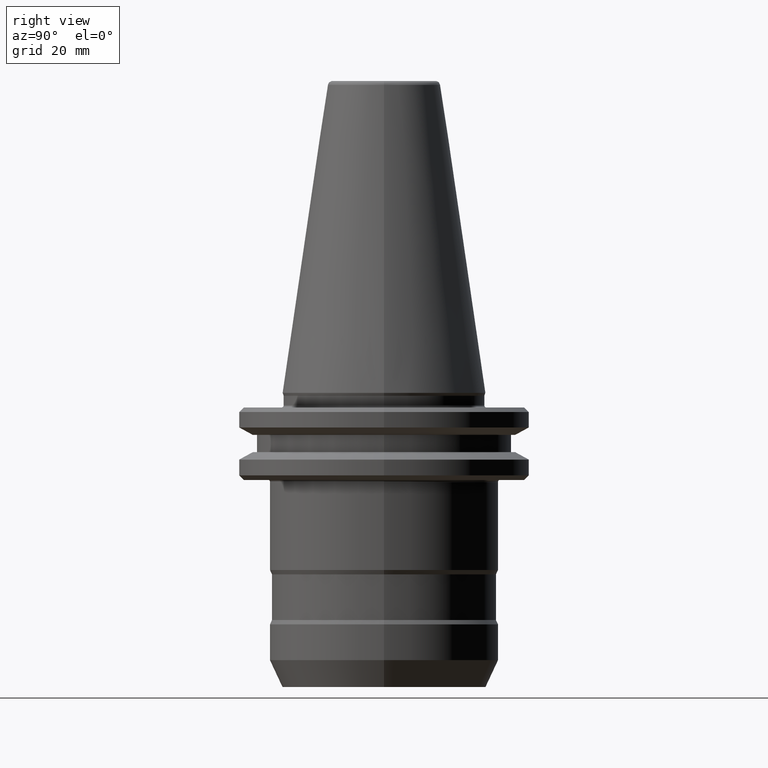
[diagram: clean part render]
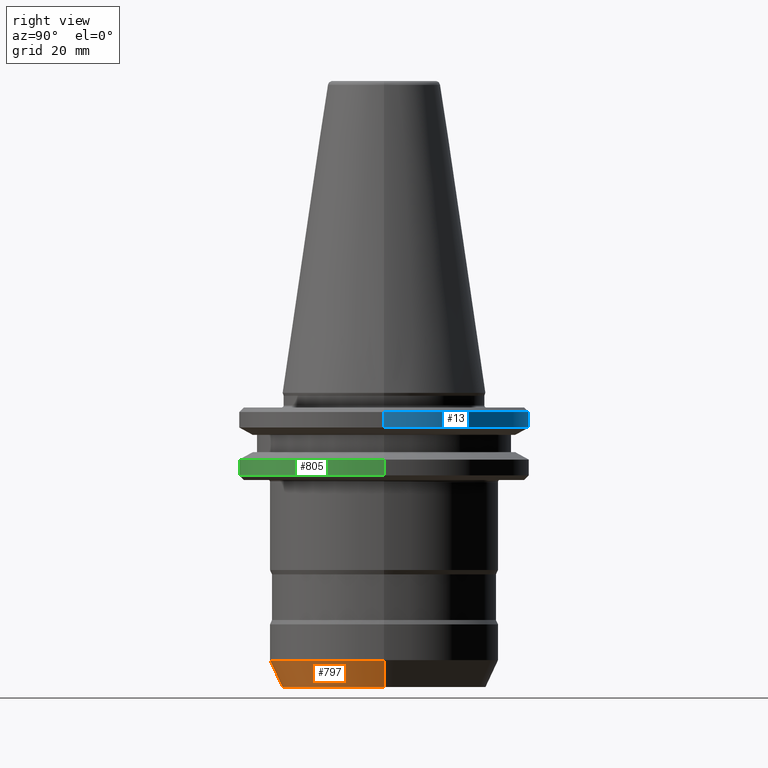
[diagram: same view with three faces highlighted in distinct colors, each labeled with its STEP entity id]
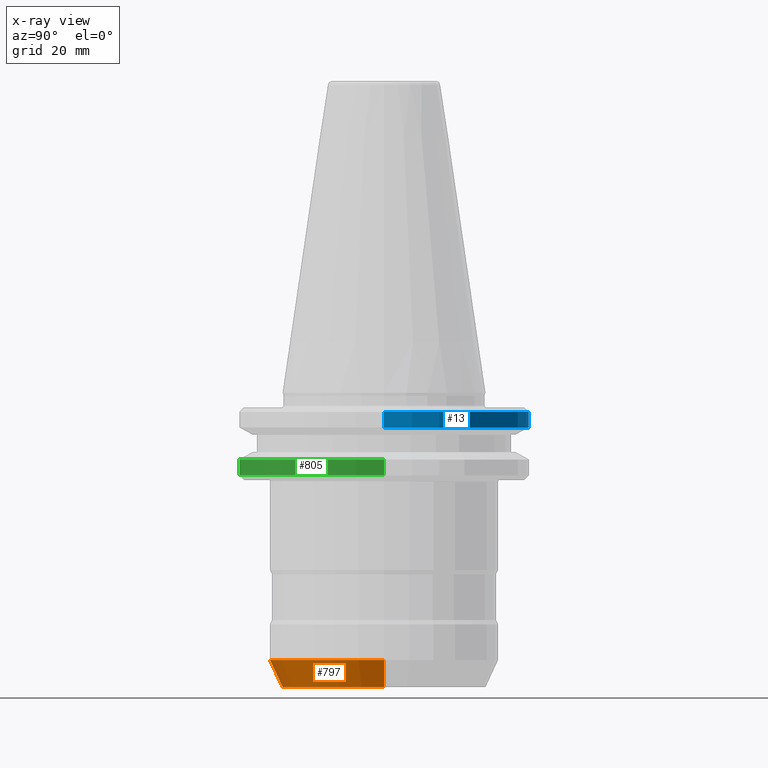
[diagram: x-ray of the same camera — body ghosted, the three highlighted faces saturated]
A machine part, right view with three faces highlighted in distinct colors.
The next image is the same camera in x-ray (body ghosted, the three faces saturated) — at least one of them is partly hidden behind the body in this view.
Their STEP definitions:

[orange] entity #797 — the highlighted conical surface has half-angle 25 deg.
#33 = CARTESIAN_POINT ( 'NONE',  ( 22.25000000000130700, 0.0000000000000000000, -64.49999999999090500 ) ) ;
#49 = VERTEX_POINT ( 'NONE', #659 ) ;
#52 = EDGE_CURVE ( 'NONE', #49, #716, #462, .T. ) ;
#77 = DIRECTION ( 'NONE',  ( -1.000000000000000000, 0.0000000000000000000, 0.0000000000000000000 ) ) ;
#162 = AXIS2_PLACEMENT_3D ( 'NONE', #1230, #653, #77 ) ;
#177 = CARTESIAN_POINT ( 'NONE',  ( 0.0000000000000000000, 0.0000000000000000000, -58.60260596859223600 ) ) ;
#234 = DIRECTION ( 'NONE',  ( -0.4226182617406890600, 5.175581015019531800E-017, 0.9063077870366548200 ) ) ;
#251 = CARTESIAN_POINT ( 'NONE',  ( 22.25000000000130700, 0.0000000000000000000, -64.49999999999090500 ) ) ;
#257 = EDGE_CURVE ( 'NONE', #683, #49, #1002, .T. ) ;
#268 = ORIENTED_EDGE ( 'NONE', *, *, #503, .F. ) ;
#459 = ORIENTED_EDGE ( 'NONE', *, *, #257, .T. ) ;
#462 = CIRCLE ( 'NONE', #979, 25.00000000000000000 ) ;
#476 = DIRECTION ( 'NONE',  ( 1.000000000000000000, 0.0000000000000000000, 0.0000000000000000000 ) ) ;
#478 = AXIS2_PLACEMENT_3D ( 'NONE', #679, #584, #476 ) ;
#503 = EDGE_CURVE ( 'NONE', #751, #716, #759, .T. ) ;
#546 = CARTESIAN_POINT ( 'NONE',  ( -22.25000000000130700, 2.893228062985701900E-015, -64.49999999999090500 ) ) ;
#575 = DIRECTION ( 'NONE',  ( 0.4226182617406890600, 0.0000000000000000000, 0.9063077870366548200 ) ) ;
#584 = DIRECTION ( 'NONE',  ( 0.0000000000000000000, 0.0000000000000000000, 1.000000000000000000 ) ) ;
#642 = CARTESIAN_POINT ( 'NONE',  ( -25.00000000000000000, 3.061616997868383000E-015, -58.60260596859223600 ) ) ;
#643 = ORIENTED_EDGE ( 'NONE', *, *, #52, .T. ) ;
#653 = DIRECTION ( 'NONE',  ( -0.0000000000000000000, -0.0000000000000000000, -1.000000000000000000 ) ) ;
#659 = CARTESIAN_POINT ( 'NONE',  ( 25.00000000000000000, 0.0000000000000000000, -58.60260596859223600 ) ) ;
#679 = CARTESIAN_POINT ( 'NONE',  ( 0.0000000000000000000, 0.0000000000000000000, -64.49999999999090500 ) ) ;
#683 = VERTEX_POINT ( 'NONE', #251 ) ;
#702 = CARTESIAN_POINT ( 'NONE',  ( -22.25000000000130700, 2.724839128103020700E-015, -64.49999999999090500 ) ) ;
#716 = VERTEX_POINT ( 'NONE', #642 ) ;
#727 = VECTOR ( 'NONE', #234, 1000.000000000000100 ) ;
#751 = VERTEX_POINT ( 'NONE', #546 ) ;
#759 = LINE ( 'NONE', #702, #727 ) ;
#764 = DIRECTION ( 'NONE',  ( -0.0000000000000000000, -0.0000000000000000000, -1.000000000000000000 ) ) ;
#768 = EDGE_CURVE ( 'NONE', #683, #751, #1033, .T. ) ;
#797 = ADVANCED_FACE ( 'NONE', ( #1005 ), #887, .T. ) ;
#887 = CONICAL_SURFACE ( 'NONE', #478, 22.25000000000130700, 0.4363323129985710000 ) ;
#979 = AXIS2_PLACEMENT_3D ( 'NONE', #177, #764, #1135 ) ;
#1002 = LINE ( 'NONE', #33, #1218 ) ;
#1005 = FACE_OUTER_BOUND ( 'NONE', #1081, .T. ) ;
#1033 = CIRCLE ( 'NONE', #162, 22.25000000000130700 ) ;
#1081 = EDGE_LOOP ( 'NONE', ( #268, #1105, #459, #643 ) ) ;
#1105 = ORIENTED_EDGE ( 'NONE', *, *, #768, .F. ) ;
#1135 = DIRECTION ( 'NONE',  ( -1.000000000000000000, 0.0000000000000000000, 0.0000000000000000000 ) ) ;
#1218 = VECTOR ( 'NONE', #575, 1000.000000000000100 ) ;
#1230 = CARTESIAN_POINT ( 'NONE',  ( 0.0000000000000000000, 0.0000000000000000000, -64.49999999999090500 ) ) ;

[blue] entity #13 — the highlighted cylindrical surface (partial cylindrical patch) has radius 31.75 mm, axis along (-0, -0, -1).
#6 = VERTEX_POINT ( 'NONE', #148 ) ;
#13 = ADVANCED_FACE ( 'NONE', ( #795 ), #1083, .T. ) ;
#67 = CARTESIAN_POINT ( 'NONE',  ( -31.74999999999998600, 0.0000000000000000000, -73.52490428627834300 ) ) ;
#88 = EDGE_CURVE ( 'NONE', #372, #6, #963, .T. ) ;
#106 = AXIS2_PLACEMENT_3D ( 'NONE', #1164, #902, #415 ) ;
#126 = EDGE_CURVE ( 'NONE', #913, #264, #906, .T. ) ;
#148 = CARTESIAN_POINT ( 'NONE',  ( 31.74999999999999300, 0.0000000000000000000, -7.578163357937247800 ) ) ;
#161 = EDGE_CURVE ( 'NONE', #913, #372, #571, .T. ) ;
#184 = VECTOR ( 'NONE', #1141, 1000.000000000000000 ) ;
#208 = ORIENTED_EDGE ( 'NONE', *, *, #88, .T. ) ;
#264 = VERTEX_POINT ( 'NONE', #524 ) ;
#319 = ORIENTED_EDGE ( 'NONE', *, *, #161, .T. ) ;
#342 = VECTOR ( 'NONE', #961, 1000.000000000000000 ) ;
#346 = DIRECTION ( 'NONE',  ( -0.0000000000000000000, -0.0000000000000000000, -1.000000000000000000 ) ) ;
#361 = CARTESIAN_POINT ( 'NONE',  ( 0.0000000000000000000, 0.0000000000000000000, -73.52490428627834300 ) ) ;
#372 = VERTEX_POINT ( 'NONE', #854 ) ;
#415 = DIRECTION ( 'NONE',  ( -1.000000000000000000, 0.0000000000000000000, 0.0000000000000000000 ) ) ;
#453 = DIRECTION ( 'NONE',  ( -1.000000000000000000, 0.0000000000000000000, 0.0000000000000000000 ) ) ;
#524 = CARTESIAN_POINT ( 'NONE',  ( -31.74999999999999300, 3.888253587292845700E-015, -7.578163357937247800 ) ) ;
#565 = CARTESIAN_POINT ( 'NONE',  ( 31.74999999999998600, 3.888253587292844900E-015, -73.52490428627834300 ) ) ;
#570 = EDGE_LOOP ( 'NONE', ( #319, #208, #595, #1203 ) ) ;
#571 = CIRCLE ( 'NONE', #106, 31.74999999999998600 ) ;
#577 = CIRCLE ( 'NONE', #821, 31.74999999999999300 ) ;
#595 = ORIENTED_EDGE ( 'NONE', *, *, #699, .F. ) ;
#618 = CARTESIAN_POINT ( 'NONE',  ( -31.74999999999998600, 0.0000000000000000000, -4.199999999993528000 ) ) ;
#646 = DIRECTION ( 'NONE',  ( -0.0000000000000000000, -0.0000000000000000000, -1.000000000000000000 ) ) ;
#699 = EDGE_CURVE ( 'NONE', #264, #6, #577, .T. ) ;
#795 = FACE_OUTER_BOUND ( 'NONE', #570, .T. ) ;
#821 = AXIS2_PLACEMENT_3D ( 'NONE', #938, #346, #1025 ) ;
#846 = AXIS2_PLACEMENT_3D ( 'NONE', #361, #646, #453 ) ;
#854 = CARTESIAN_POINT ( 'NONE',  ( 31.74999999999998600, 3.888253587292844900E-015, -4.199999999993528000 ) ) ;
#902 = DIRECTION ( 'NONE',  ( -0.0000000000000000000, -0.0000000000000000000, -1.000000000000000000 ) ) ;
#906 = LINE ( 'NONE', #67, #342 ) ;
#913 = VERTEX_POINT ( 'NONE', #618 ) ;
#938 = CARTESIAN_POINT ( 'NONE',  ( 0.0000000000000000000, 0.0000000000000000000, -7.578163357937247800 ) ) ;
#961 = DIRECTION ( 'NONE',  ( -0.0000000000000000000, -0.0000000000000000000, -1.000000000000000000 ) ) ;
#963 = LINE ( 'NONE', #565, #184 ) ;
#1025 = DIRECTION ( 'NONE',  ( -1.000000000000000000, 0.0000000000000000000, 0.0000000000000000000 ) ) ;
#1083 = CYLINDRICAL_SURFACE ( 'NONE', #846, 31.74999999999998600 ) ;
#1141 = DIRECTION ( 'NONE',  ( -0.0000000000000000000, -0.0000000000000000000, -1.000000000000000000 ) ) ;
#1164 = CARTESIAN_POINT ( 'NONE',  ( 0.0000000000000000000, 0.0000000000000000000, -4.199999999993528000 ) ) ;
#1203 = ORIENTED_EDGE ( 'NONE', *, *, #126, .F. ) ;

[green] entity #805 — the highlighted cylindrical surface (partial cylindrical patch) has radius 31.75 mm, axis along (-0, -0, -1).
#1 = CYLINDRICAL_SURFACE ( 'NONE', #681, 31.75000000000000000 ) ;
#20 = EDGE_CURVE ( 'NONE', #109, #66, #863, .T. ) ;
#60 = CARTESIAN_POINT ( 'NONE',  ( -31.74999999999999300, 0.0000000000000000000, -14.62183664205596400 ) ) ;
#66 = VERTEX_POINT ( 'NONE', #958 ) ;
#109 = VERTEX_POINT ( 'NONE', #277 ) ;
#118 = DIRECTION ( 'NONE',  ( -1.000000000000000000, 0.0000000000000000000, 0.0000000000000000000 ) ) ;
#180 = DIRECTION ( 'NONE',  ( -0.0000000000000000000, -0.0000000000000000000, -1.000000000000000000 ) ) ;
#209 = CARTESIAN_POINT ( 'NONE',  ( 0.0000000000000000000, 0.0000000000000000000, -18.10000000000011500 ) ) ;
#256 = EDGE_CURVE ( 'NONE', #109, #1089, #473, .T. ) ;
#277 = CARTESIAN_POINT ( 'NONE',  ( 31.74999999999999300, 3.888253587292845700E-015, -14.62183664205596400 ) ) ;
#297 = CARTESIAN_POINT ( 'NONE',  ( 0.0000000000000000000, 0.0000000000000000000, -73.52490428627834300 ) ) ;
#345 = CARTESIAN_POINT ( 'NONE',  ( -31.75000000000000000, 0.0000000000000000000, -73.52490428627834300 ) ) ;
#390 = DIRECTION ( 'NONE',  ( -0.0000000000000000000, -0.0000000000000000000, -1.000000000000000000 ) ) ;
#393 = DIRECTION ( 'NONE',  ( -1.000000000000000000, 0.0000000000000000000, 0.0000000000000000000 ) ) ;
#395 = CIRCLE ( 'NONE', #981, 31.75000000000000000 ) ;
#416 = LINE ( 'NONE', #345, #914 ) ;
#439 = CARTESIAN_POINT ( 'NONE',  ( -31.75000000000000000, 3.888253587292847300E-015, -18.10000000000011500 ) ) ;
#460 = EDGE_CURVE ( 'NONE', #66, #697, #395, .T. ) ;
#473 = CIRCLE ( 'NONE', #892, 31.74999999999999300 ) ;
#567 = VECTOR ( 'NONE', #180, 1000.000000000000000 ) ;
#681 = AXIS2_PLACEMENT_3D ( 'NONE', #297, #390, #884 ) ;
#697 = VERTEX_POINT ( 'NONE', #439 ) ;
#755 = CARTESIAN_POINT ( 'NONE',  ( 31.75000000000000000, 3.888253587292846500E-015, -73.52490428627834300 ) ) ;
#761 = ORIENTED_EDGE ( 'NONE', *, *, #256, .T. ) ;
#805 = ADVANCED_FACE ( 'NONE', ( #1222 ), #1, .T. ) ;
#832 = DIRECTION ( 'NONE',  ( -0.0000000000000000000, -0.0000000000000000000, -1.000000000000000000 ) ) ;
#860 = ORIENTED_EDGE ( 'NONE', *, *, #460, .F. ) ;
#863 = LINE ( 'NONE', #755, #567 ) ;
#868 = ORIENTED_EDGE ( 'NONE', *, *, #1085, .T. ) ;
#878 = ORIENTED_EDGE ( 'NONE', *, *, #20, .F. ) ;
#884 = DIRECTION ( 'NONE',  ( -1.000000000000000000, 0.0000000000000000000, 0.0000000000000000000 ) ) ;
#892 = AXIS2_PLACEMENT_3D ( 'NONE', #1187, #971, #118 ) ;
#914 = VECTOR ( 'NONE', #832, 1000.000000000000000 ) ;
#958 = CARTESIAN_POINT ( 'NONE',  ( 31.75000000000000000, 0.0000000000000000000, -18.10000000000011500 ) ) ;
#971 = DIRECTION ( 'NONE',  ( -0.0000000000000000000, -0.0000000000000000000, -1.000000000000000000 ) ) ;
#981 = AXIS2_PLACEMENT_3D ( 'NONE', #209, #1170, #393 ) ;
#1085 = EDGE_CURVE ( 'NONE', #1089, #697, #416, .T. ) ;
#1089 = VERTEX_POINT ( 'NONE', #60 ) ;
#1170 = DIRECTION ( 'NONE',  ( -0.0000000000000000000, -0.0000000000000000000, -1.000000000000000000 ) ) ;
#1187 = CARTESIAN_POINT ( 'NONE',  ( 0.0000000000000000000, 0.0000000000000000000, -14.62183664205596400 ) ) ;
#1222 = FACE_OUTER_BOUND ( 'NONE', #1227, .T. ) ;
#1227 = EDGE_LOOP ( 'NONE', ( #878, #761, #868, #860 ) ) ;